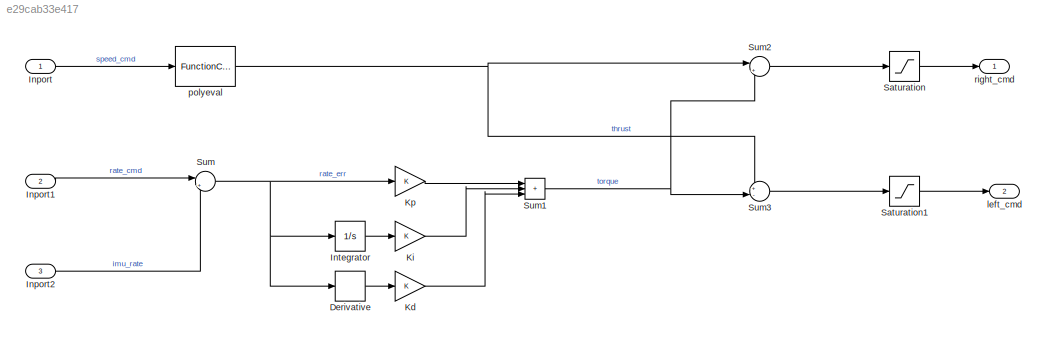
MODEL slx_e29cab33e417
KIND model
CONFIG AbsTol = auto
CONFIG EnableMultiTasking = off
CONFIG FixedStep = auto
CONFIG MaxStep = auto
CONFIG MinStep = auto
CONFIG RelTol = 1e-3
CONFIG SampleTimeConstraint = Unconstrained
CONFIG SolverName = VariableStepAuto
CONFIG StartTime = 0.0
CONFIG StopTime = 10.0
BLOCK [Derivative] Derivative
BLOCK [Inport] Inport
BLOCK [Inport] Inport1
  Port = 2
BLOCK [Inport] Inport2
  Port = 3
BLOCK [Integrator] Integrator
  Ports = [1, 1]
BLOCK [Gain] Kd
BLOCK [Gain] Ki
BLOCK [Gain] Kp
BLOCK [Saturate] Saturation
BLOCK [Saturate] Saturation1
BLOCK [Sum] Sum
  Inputs = |+-
  Ports = [2, 1]
BLOCK [Sum] Sum1
  IconShape = rectangular
  Inputs = +++|
  Ports = [3, 1]
BLOCK [Sum] Sum2
  Inputs = |++
  Ports = [2, 1]
BLOCK [Sum] Sum3
  Inputs = +-|
  Ports = [2, 1]
BLOCK [Outport] left_cmd
  Port = 2
BLOCK [FunctionCaller] polyeval
  FunctionPrototype = y = f(u)
  InputArgumentSpecifications = <Enter example>
  OutputArgumentSpecifications = <Enter example>
  Ports = [1, 1]
BLOCK [Outport] right_cmd
LINE Derivative:1 -> Kd:1
LINE Inport1:1 -> Sum:1
LINE Inport2:1 -> Sum:2
LINE Inport:1 -> polyeval:1
LINE Integrator:1 -> Ki:1
LINE Kd:1 -> Sum1:3
LINE Ki:1 -> Sum1:2
LINE Kp:1 -> Sum1:1
LINE Saturation1:1 -> left_cmd:1
LINE Saturation:1 -> right_cmd:1
NET Sum1:1 -> Sum2:2, Sum3:2
LINE Sum2:1 -> Saturation:1
LINE Sum3:1 -> Saturation1:1
NET Sum:1 -> Derivative:1, Integrator:1, Kp:1
NET polyeval:1 -> Sum2:1, Sum3:1
note: NET lines group one-source signal fan-out (src -> all destinations, sorted); 1:1 wires keep LINE
